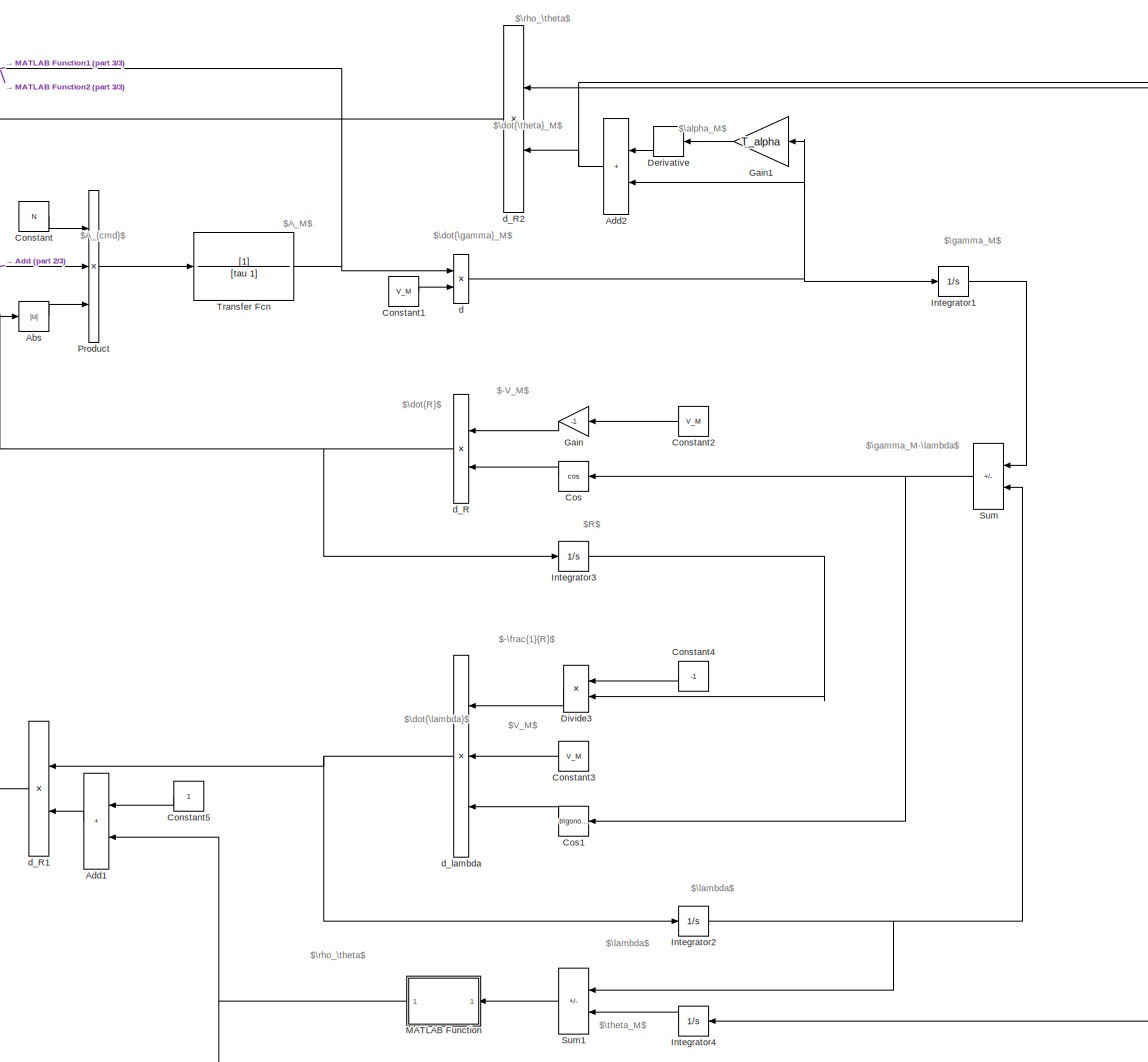
[diagram: root canvas - part 1/3, center side, full height]
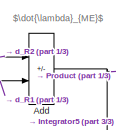
[diagram: root canvas - part 2/3, top left region]
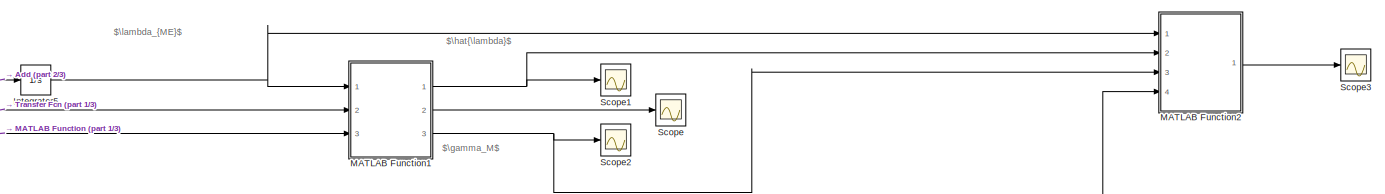
[diagram: root canvas - part 3/3, bottom right region]
MODEL slx_26e829157ece
KIND model
CONFIG AbsTol = auto
CONFIG EnableMultiTasking = off
CONFIG FixedStep = 0.001
CONFIG MaxStep = auto
CONFIG MinStep = auto
CONFIG RelTol = 1e-3
CONFIG SampleTimeConstraint = Unconstrained
CONFIG Solver = ode4
CONFIG SolverName = ode4
CONFIG StartTime = 0.0
CONFIG StopTime = 20
BLOCK [Abs] Abs
  SaturateOnIntegerOverflow = off
BLOCK [Sum] Add
  IconShape = rectangular
  Inputs = -+
  Ports = [2, 1]
BLOCK [Sum] Add1
  IconShape = rectangular
  NameLocation = top
  Ports = [2, 1]
BLOCK [Sum] Add2
  IconShape = rectangular
  NameLocation = top
  Ports = [2, 1]
BLOCK [Constant] Constant
  Value = N
BLOCK [Constant] Constant1
  Value = V_M
BLOCK [Constant] Constant2
  NameLocation = top
  Value = V_M
BLOCK [Constant] Constant3
  NameLocation = top
  Value = V_M
BLOCK [Constant] Constant4
  NameLocation = top
  Value = -1
BLOCK [Constant] Constant5
  NameLocation = top
BLOCK [Trigonometry] Cos
  NameLocation = top
  Operator = cos
  Ports = [1, 1]
BLOCK [Trigonometry] Cos1
  NameLocation = top
  Ports = [1, 1]
BLOCK [Derivative] Derivative
  NameLocation = top
BLOCK [Product] Divide3
  Inputs = */
  NameLocation = top
  Ports = [2, 1]
BLOCK [Gain] Gain
  Gain = -1
  NameLocation = top
BLOCK [Gain] Gain1
  Gain = T_alpha
  NameLocation = top
BLOCK [Integrator] Integrator1
  Ports = [1, 1]
BLOCK [Integrator] Integrator2
  InitialCondition = 0.0997
  Ports = [1, 1]
BLOCK [Integrator] Integrator3
  InitialCondition = 10050
  Ports = [1, 1]
BLOCK [Integrator] Integrator4
  NameLocation = top
  Ports = [1, 1]
BLOCK [Integrator] Integrator5
  InitialCondition = 0.1021925
  Ports = [1, 1]
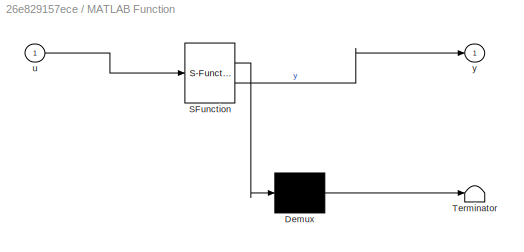
BLOCK [SubSystem] MATLAB Function
  ErrorFcn = Stateflow.Translate.translate
  NameLocation = top
  PermitHierarchicalResolution = ExplicitOnly
  Ports = [1, 1]
  RequestExecContextInheritance = off
  SFBlockType = MATLAB Function
  TreatAsAtomicUnit = on
BLOCK [Demux] MATLAB Function/ Demux 
  Outputs = 1
  Ports = [1, 1]
BLOCK [S-Function] MATLAB Function/ SFunction 
  EnableBusSupport = on
  FunctionName = sf_sfun
  PortCounts = [1 2]
  Ports = [1, 2]
  SFcnIsStateOwnerBlock = off
  SFunctionDeploymentMode = off
  Tag = Stateflow S-Function 2
BLOCK [Terminator] MATLAB Function/ Terminator 
BLOCK [Inport] MATLAB Function/u
BLOCK [Outport] MATLAB Function/y
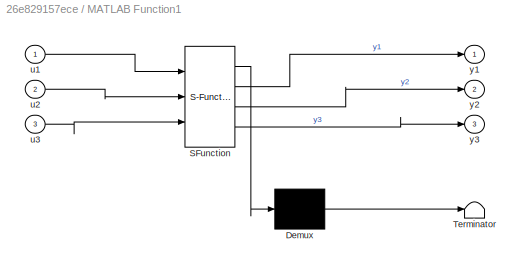
BLOCK [SubSystem] MATLAB Function1
  ErrorFcn = Stateflow.Translate.translate
  PermitHierarchicalResolution = ExplicitOnly
  Ports = [3, 3]
  RequestExecContextInheritance = off
  SFBlockType = MATLAB Function
  TreatAsAtomicUnit = on
BLOCK [Demux] MATLAB Function1/ Demux 
  Outputs = 1
  Ports = [1, 1]
BLOCK [S-Function] MATLAB Function1/ SFunction 
  EnableBusSupport = on
  FunctionName = sf_sfun
  PortCounts = [3 4]
  Ports = [3, 4]
  SFcnIsStateOwnerBlock = off
  SFunctionDeploymentMode = off
  Tag = Stateflow S-Function 1
BLOCK [Terminator] MATLAB Function1/ Terminator 
BLOCK [Inport] MATLAB Function1/u1
BLOCK [Inport] MATLAB Function1/u2
  Port = 2
BLOCK [Inport] MATLAB Function1/u3
  Port = 3
BLOCK [Outport] MATLAB Function1/y1
BLOCK [Outport] MATLAB Function1/y2
  Port = 2
BLOCK [Outport] MATLAB Function1/y3
  Port = 3
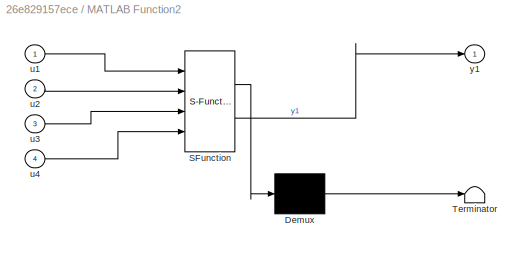
BLOCK [SubSystem] MATLAB Function2
  ErrorFcn = Stateflow.Translate.translate
  PermitHierarchicalResolution = ExplicitOnly
  Ports = [4, 1]
  RequestExecContextInheritance = off
  SFBlockType = MATLAB Function
  TreatAsAtomicUnit = on
BLOCK [Demux] MATLAB Function2/ Demux 
  Outputs = 1
  Ports = [1, 1]
BLOCK [S-Function] MATLAB Function2/ SFunction 
  EnableBusSupport = on
  FunctionName = sf_sfun
  PortCounts = [4 2]
  Ports = [4, 2]
  SFcnIsStateOwnerBlock = off
  SFunctionDeploymentMode = off
  Tag = Stateflow S-Function 3
BLOCK [Terminator] MATLAB Function2/ Terminator 
BLOCK [Inport] MATLAB Function2/u1
BLOCK [Inport] MATLAB Function2/u2
  Port = 2
BLOCK [Inport] MATLAB Function2/u3
  Port = 3
BLOCK [Inport] MATLAB Function2/u4
  Port = 4
BLOCK [Outport] MATLAB Function2/y1
BLOCK [Product] Product
  Inputs = 3
  Ports = [3, 1]
BLOCK [Scope] Scope
  Floating = off
  NumInputPorts = 1
  Ports = [1]
  ScopeSpecificationString = Simulink.scopes.TimeScopeBlockCfg('CurrentConfiguration', extmgr.ConfigurationSet(extmgr.Configuration('Core','General UI',true),extmgr.Configuration('Core','Source UI',true),extmgr.Configuration('Sources','WiredSimulink',true),extmgr.Configuration('Visuals','Time Domain',true,'SerializedDisplays',{struct('MinYLimReal','-1267.05601','MaxYLimReal','13529.67289','YLabelReal','','MinYLimMag','  0.000...<+1395ch>
BLOCK [Scope] Scope1
  Floating = off
  NumInputPorts = 1
  Ports = [1]
  ScopeSpecificationString = Simulink.scopes.TimeScopeBlockCfg('CurrentConfiguration', extmgr.ConfigurationSet(extmgr.Configuration('Core','General UI',true),extmgr.Configuration('Core','Source UI',true),extmgr.Configuration('Sources','WiredSimulink',true,'DataLoggingVariableName','ScopeData1'),extmgr.Configuration('Visuals','Time Domain',true,'SerializedDisplays',{struct('MinYLimReal','0.09611','MaxYLimReal','0.1408','YLabel...<+1403ch>
BLOCK [Scope] Scope2
  Floating = off
  NumInputPorts = 1
  Ports = [1]
  ScopeSpecificationString = Simulink.scopes.TimeScopeBlockCfg('CurrentConfiguration', extmgr.ConfigurationSet(extmgr.Configuration('Core','General UI',true),extmgr.Configuration('Core','Source UI',true),extmgr.Configuration('Sources','WiredSimulink',true,'DataLoggingVariableName','ScopeData2'),extmgr.Configuration('Visuals','Time Domain',true,'SerializedDisplays',{struct('MinYLimReal','0.00319','MaxYLimReal','0.15099','YLabe...<+1407ch>
BLOCK [Scope] Scope3
  Floating = off
  NumInputPorts = 1
  Ports = [1]
  ScopeSpecificationString = Simulink.scopes.TimeScopeBlockCfg('CurrentConfiguration', extmgr.ConfigurationSet(extmgr.Configuration('Core','General UI',true),extmgr.Configuration('Core','Source UI',true),extmgr.Configuration('Sources','WiredSimulink',true,'DataLoggingVariableName','ScopeData1'),extmgr.Configuration('Visuals','Time Domain',true,'SerializedDisplays',{struct('MinYLimReal','-1267.05601','MaxYLimReal','13529.67289...<+1434ch>
BLOCK [Sum] Sum
  IconShape = rectangular
  Inputs = +|-
  NameLocation = top
  Ports = [2, 1]
BLOCK [Sum] Sum1
  IconShape = rectangular
  Inputs = +|-
  NameLocation = top
  Ports = [2, 1]
BLOCK [TransferFcn] Transfer Fcn
  Denominator = [tau 1]
BLOCK [Product] d
  Inputs = */
  NameLocation = right
  Ports = [2, 1]
BLOCK [Product] d_R
  Inputs = **
  NameLocation = top
  Ports = [2, 1]
BLOCK [Product] d_R1
  Inputs = **
  NameLocation = top
  Ports = [2, 1]
BLOCK [Product] d_R2
  Inputs = **
  NameLocation = top
  Ports = [2, 1]
BLOCK [Product] d_lambda
  Inputs = ***
  NameLocation = top
  Ports = [3, 1]
ANNOTATION (root): $-V_M$
ANNOTATION (root): $-\frac{1}{R}$
ANNOTATION (root): $A_M$
ANNOTATION (root): $A_{cmd}$
ANNOTATION (root): $R$
ANNOTATION (root): $V_M$
ANNOTATION (root): $\dot{R}$
ANNOTATION (root): $\dot{\gamma}_M$
ANNOTATION (root): $\dot{\lambda}$
ANNOTATION (root): $\dot{\lambda}_{ME}$
ANNOTATION (root): $\dot{\theta}_M$
ANNOTATION (root): $\gamma_M$
ANNOTATION (root): $\gamma_M-\lambda$
ANNOTATION (root): $\hat{\lambda}$
ANNOTATION (root): $\lambda$
ANNOTATION (root): $\rho_\theta$
ANNOTATION (root): $\theta_M$
ANNOTATION (root): $\lambda_{ME}$
ANNOTATION (root): $\alpha_M$
LINE Abs:1 -> Product:3
LINE Add1:1 -> d_R1:2
NET Add2:1 -> Integrator4:1, d_R2:2
NET Add:1 -> Integrator5:1, Product:2
LINE Constant1:1 -> d:2
LINE Constant2:1 -> Gain:1
LINE Constant3:1 -> d_lambda:2
LINE Constant4:1 -> Divide3:1
LINE Constant5:1 -> Add1:1
LINE Constant:1 -> Product:1
LINE Cos1:1 -> d_lambda:3
LINE Cos:1 -> d_R:2
LINE Derivative:1 -> Add2:1
LINE Divide3:1 -> d_lambda:1
LINE Gain1:1 -> Derivative:1
LINE Gain:1 -> d_R:1
LINE Integrator1:1 -> Sum:1
NET Integrator2:1 -> Sum1:1, Sum:2
LINE Integrator3:1 -> Divide3:2
LINE Integrator4:1 -> Sum1:2
NET Integrator5:1 -> MATLAB Function1:1, MATLAB Function2:1
NET MATLAB Function1:1 -> MATLAB Function2:2, Scope1:1
LINE MATLAB Function1:2 -> Scope:1
NET MATLAB Function1:3 -> MATLAB Function2:3, Scope2:1
LINE MATLAB Function2:1 -> Scope3:1
NET MATLAB Function:1 -> Add1:2, MATLAB Function1:3, d_R2:1
LINE Product:1 -> Transfer Fcn:1
LINE Sum1:1 -> MATLAB Function:1
NET Sum:1 -> Cos1:1, Cos:1
NET Transfer Fcn:1 -> MATLAB Function1:2, MATLAB Function2:4, d:1
NET d:1 -> Add2:2, Gain1:1, Integrator1:1
LINE d_R1:1 -> Add:2
LINE d_R2:1 -> Add:1
NET d_R:1 -> Abs:1, Integrator3:1
NET d_lambda:1 -> Integrator2:1, d_R1:1
note: NET lines group one-source signal fan-out (src -> all destinations, sorted); 1:1 wires keep LINE
CHART MATLAB Function1 states=1 transitions=1
  STATE_LABEL 'eML_blk_kernel()'
  STATE_LABEL 'SCRIPT:\nfunction [y1,y2,y3]=fcn(u1,u2,u3)\n\n\n\n%% read data\nz_curr=u1;\nA_M_curr=u2;\nrho_theta_curr=u3;% first assume that rho_theta is known as an input, while it is supposed to be provided by GPR\n\nt_end=20;\ndelta_t_cont=0.001;\ndelta_t_disc=0.001;\nT=t_end/delta_t_disc;\n\nT_alpha=1;\nV_M=500;\n\npersistent i_curr\npersistent u_cont\npersistent x_est\npersistent P_est\npersistent rho_theta\n\n\nif isempty(i_curr...<+1161ch>'
CHART MATLAB Function states=1 transitions=1
  STATE_LABEL 'eML_blk_kernel()'
  STATE_LABEL 'SCRIPT:\nfunction y = fcn(u)\n\n%%\n% r=-0.5;\n% zeta=4;\n% p=1;\n% \n% if u<0\n%     a=exp(zeta*u);\n%     b=zeta*sin(2*pi*u/p);\n%     c=2*pi/p*cos(2*pi*u/p);\n% else\n%     a=exp(-zeta*u);\n%     b=-zeta*sin(2*pi*u/p);\n%     c=2*pi/p*cos(2*pi*u/p);\n% end\n% \n% y=r*a*(b+c);\n% y=y/rad2deg(1);\n\n%%\ny=0.025;\n% y=0.05;'
CHART MATLAB Function2 states=1 transitions=1
  STATE_LABEL 'eML_blk_kernel()'
  STATE_LABEL 'SCRIPT:\nfunction y1 =fcn(u1,u2,u3,u4)\n\n%% read data\nlambda_ME_curr=u1;\n\nlambda_curr=u2;\ngamma_M_curr=u3;\nA_M_curr=u4;\n\n\n\nt_end=20;\ndelta_t_cont=0.001;\ndelta_t_disc=0.001;\nT=t_end/delta_t_disc;\n\nT_alpha=1;\nV_M=500;\n\npersistent i_curr\npersistent theta_s_est\npersistent lambda_r_est\n\nif isempty(i_curr)\n    i_curr=1;\nelse\n    i_curr=i_curr+1;\nend\n\nif isempty(theta_s_est)\n    theta_s_est=zeros(T+1,1);\ne...<+2117ch>'
CHART  states=0 transitions=0
CHART  states=0 transitions=0
CHART  states=0 transitions=0
